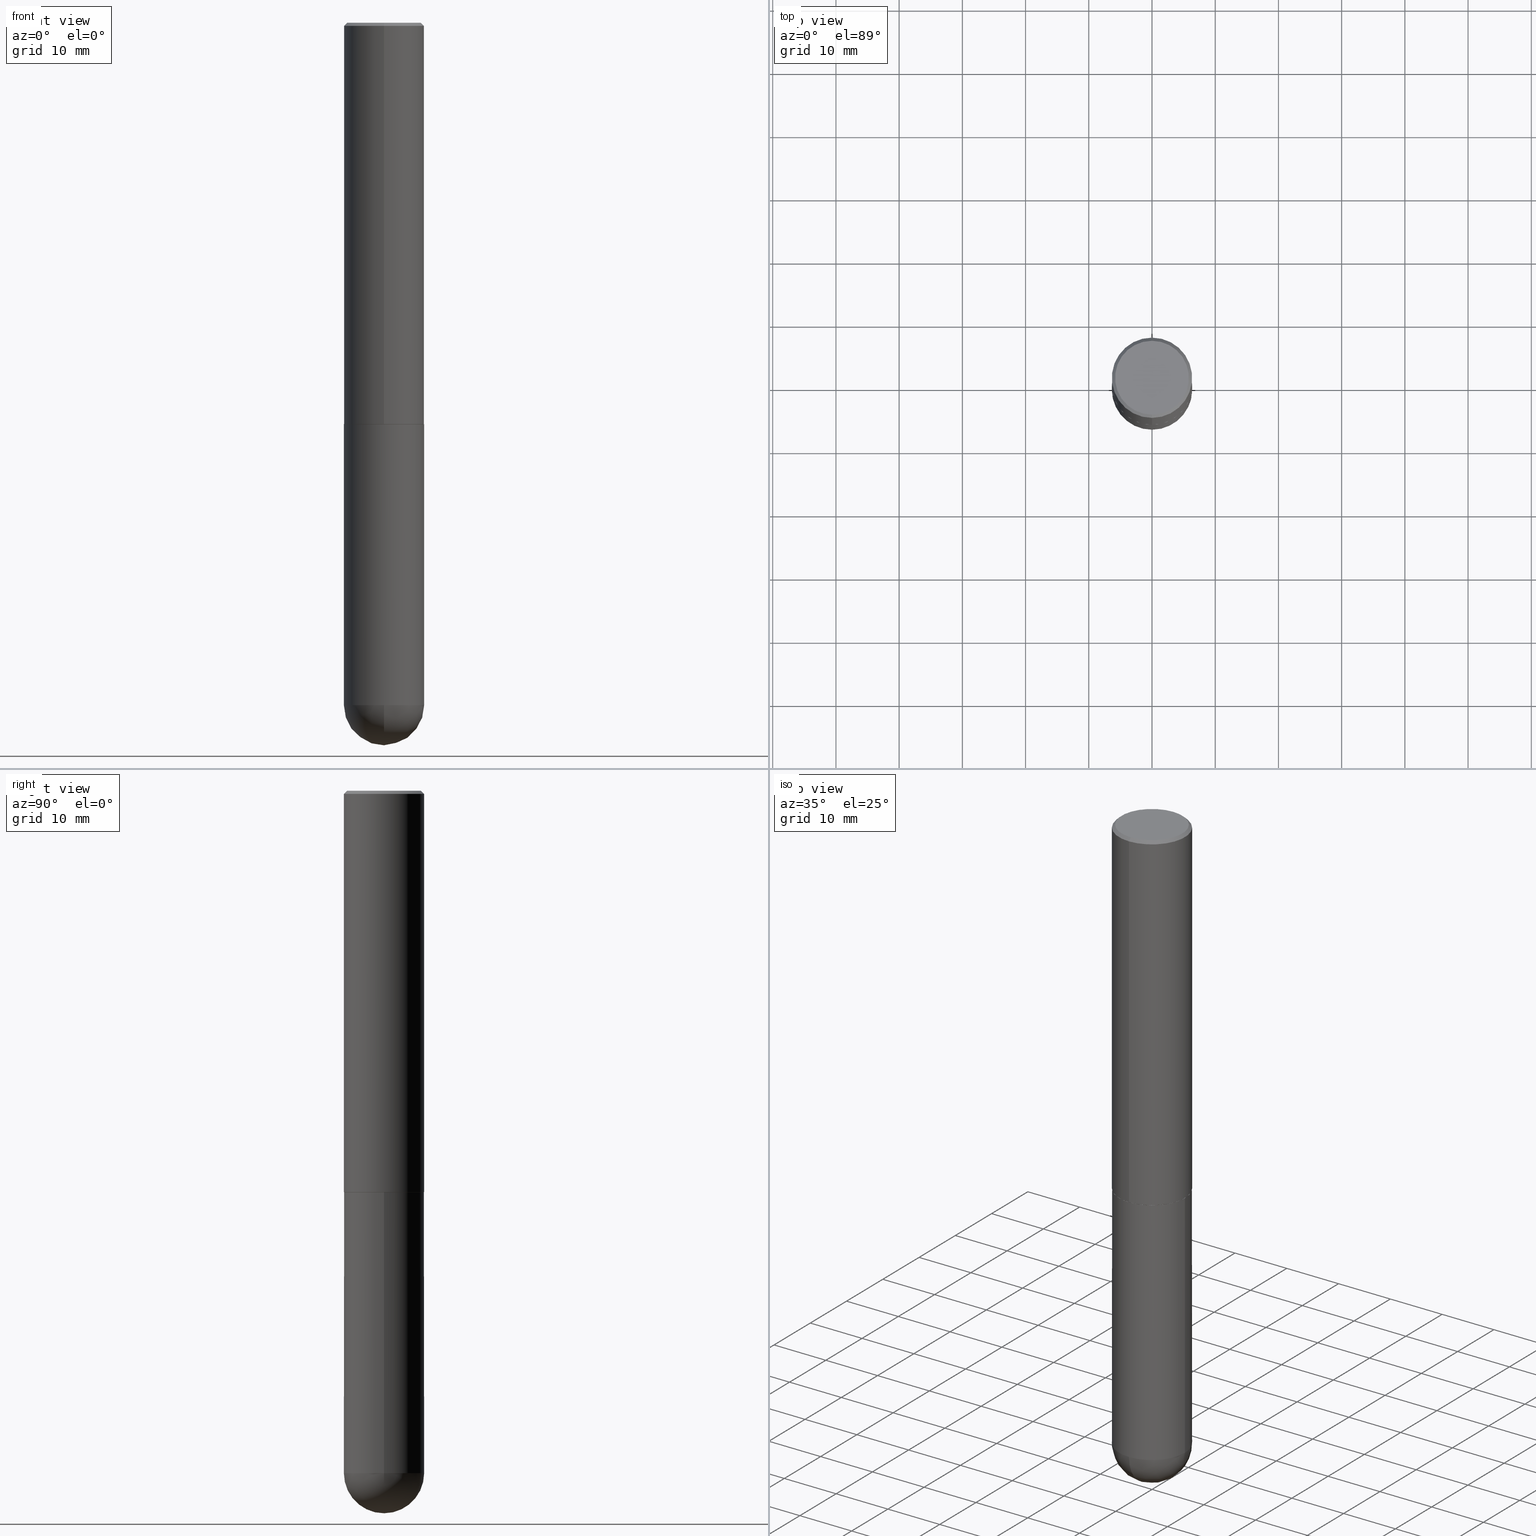
[diagram: canonical four-view strip — front | top / right | iso, engineering-drawing reading convention]
A machine part, canonical four-view strip (front | top / right | iso — engineering-drawing reading convention). The complete STEP part file that produces these views, byte-faithful:
ISO-10303-21;
HEADER;
FILE_DESCRIPTION (( 'STEP AP203' ),
    '1' );
FILE_NAME ('31786.STEP',
    '2024-02-21T16:54:42',
    ( '' ),
    ( '' ),
    'SwSTEP 2.0',
    'SolidWorks 2023',
    '' );
FILE_SCHEMA (( 'CONFIG_CONTROL_DESIGN' ));
ENDSEC;

DATA;
#1 = SPHERICAL_SURFACE ( 'NONE', #5, 0.2500000000000001110 ) ;
#2 = APPLICATION_CONTEXT ( 'configuration controlled 3d designs of mechanical parts and assemblies' ) ;
#3 = APPROVAL_STATUS ( 'not_yet_approved' ) ;
#4 = DIRECTION ( 'NONE',  ( -2.445468806185136597E-29, 3.491481338843145583E-15, 1.000000000000000000 ) ) ;
#5 = AXIS2_PLACEMENT_3D ( 'NONE', #143, #288, #322 ) ;
#6 = VERTEX_POINT ( 'NONE', #124 ) ;
#7 = CALENDAR_DATE ( 2024, 21, 2 ) ;
#8 = DIRECTION ( 'NONE',  ( 5.024295867789263036E-15, 0.7071067811867189912, 0.7071067811863760433 ) ) ;
#9 = DIRECTION ( 'NONE',  ( -1.000000000000000000, 6.982962677686265922E-15, -4.883557194083113462E-29 ) ) ;
#10 = DIRECTION ( 'NONE',  ( -2.445109736820922196E-29, 3.491995546609659985E-15, 1.000000000000000000 ) ) ;
#11 = CIRCLE ( 'NONE', #275, 0.2500000000000002776 ) ;
#12 = CARTESIAN_POINT ( 'NONE',  ( 4.890219473641857704E-31, -6.983991093219337770E-17, -0.02000000000000005593 ) ) ;
#13 = EDGE_CURVE ( 'NONE', #194, #108, #46, .T. ) ;
#14 = CYLINDRICAL_SURFACE ( 'NONE', #61, 0.2500000000000001110 ) ;
#15 = LINE ( 'NONE', #148, #128 ) ;
#16 = EDGE_CURVE ( 'NONE', #141, #412, #20, .T. ) ;
#17 = FACE_OUTER_BOUND ( 'NONE', #201, .T. ) ;
#18 = DIRECTION ( 'NONE',  ( 1.000000000000000000, -6.982962677686270655E-15, 0.000000000000000000 ) ) ;
#19 = CALENDAR_DATE ( 2024, 21, 2 ) ;
#20 = CIRCLE ( 'NONE', #136, 0.2500000000000000000 ) ;
#21 = AXIS2_PLACEMENT_3D ( 'NONE', #211, #367, #18 ) ;
#22 = EDGE_LOOP ( 'NONE', ( #26, #257, #230, #315 ) ) ;
#23 = APPROVAL_DATE_TIME ( #312, #245 ) ;
#24 = EDGE_LOOP ( 'NONE', ( #65, #126, #104, #343 ) ) ;
#25 = PERSON ( 'UNSPECIFIED', 'UNSPECIFIED', 'UNSPECIFIED', ('UNSPECIFIED'), ('UNSPECIFIED'), ('UNSPECIFIED') ) ;
#26 = ORIENTED_EDGE ( 'NONE', *, *, #35, .F. ) ;
#27 = ORIENTED_EDGE ( 'NONE', *, *, #272, .F. ) ;
#28 = DIRECTION ( 'NONE',  ( 1.000000000000000000, 0.000000000000000000, 0.000000000000000000 ) ) ;
#29 = CARTESIAN_POINT ( 'NONE',  ( 1.039324242628683054E-28, -1.483879569008337040E-14, -4.250000000000000000 ) ) ;
#30 = PRODUCT_DEFINITION_FORMATION_WITH_SPECIFIED_SOURCE ( 'ANY', '', #72, .NOT_KNOWN. ) ;
#31 = ORIENTED_EDGE ( 'NONE', *, *, #184, .F. ) ;
#32 = CARTESIAN_POINT ( 'NONE',  ( 1.006212264837294429E-28, -1.531297805822341912E-14, -4.250000000000000000 ) ) ;
#33 = ORIENTED_EDGE ( 'NONE', *, *, #362, .T. ) ;
#34 = SECURITY_CLASSIFICATION_LEVEL ( 'unclassified' ) ;
#35 = EDGE_CURVE ( 'NONE', #223, #226, #165, .T. ) ;
#36 = DIRECTION ( 'NONE',  ( -2.445468806185136597E-29, 3.491481338843145583E-15, 1.000000000000000000 ) ) ;
#37 = ADVANCED_FACE ( 'NONE', ( #356 ), #1, .T. ) ;
#38 = DIRECTION ( 'NONE',  ( -6.982962677686266711E-15, -1.000000000000000000, 3.491995546609659985E-15 ) ) ;
#39 = AXIS2_PLACEMENT_3D ( 'NONE', #137, #352, #38 ) ;
#40 = ORIENTED_EDGE ( 'NONE', *, *, #287, .T. ) ;
#41 = PERSON_AND_ORGANIZATION ( #25, #300 ) ;
#42 = CARTESIAN_POINT ( 'NONE',  ( 1.606081415867840278E-15, 0.2299999999999998712, -7.604147169260680974E-16 ) ) ;
#43 = ORIENTED_EDGE ( 'NONE', *, *, #304, .T. ) ;
#44 = CARTESIAN_POINT ( 'NONE',  ( 6.112774342052305909E-29, -8.729988866524149372E-15, -2.500000000000000000 ) ) ;
#45 = DIRECTION ( 'NONE',  ( -2.445109736820922196E-29, 3.491995546609659985E-15, 1.000000000000000000 ) ) ;
#46 = CIRCLE ( 'NONE', #84, 0.2500000000000000000 ) ;
#47 = CC_DESIGN_PERSON_AND_ORGANIZATION_ASSIGNMENT ( #411, #199, ( #30 ) ) ;
#48 = CC_DESIGN_APPROVAL ( #101, ( #121 ) ) ;
#49 = DIRECTION ( 'NONE',  ( 6.982962677686265922E-15, 1.000000000000000000, -3.500180241882337261E-15 ) ) ;
#50 = DESIGN_CONTEXT ( 'detailed design', #2, 'design' ) ;
#51 = CARTESIAN_POINT ( 'NONE',  ( -1.738757706743818935E-15, -0.2490000000000087421, -2.499999999999999112 ) ) ;
#52 = DIRECTION ( 'NONE',  ( -2.445468806185136597E-29, 3.491481338843145583E-15, 1.000000000000000000 ) ) ;
#53 = EDGE_CURVE ( 'NONE', #226, #93, #181, .T. ) ;
#54 = CIRCLE ( 'NONE', #282, 0.2500000000000001110 ) ;
#55 = CIRCLE ( 'NONE', #397, 0.2299999999999998712 ) ;
#56 = FACE_OUTER_BOUND ( 'NONE', #100, .T. ) ;
#57 = CARTESIAN_POINT ( 'NONE',  ( 1.745740669421669032E-15, 0.2499999999999849842, -4.250000000000001776 ) ) ;
#58 = APPROVAL ( #59, 'UNSPECIFIED' ) ;
#59 = APPROVAL_STATUS ( 'not_yet_approved' ) ;
#60 = ORIENTED_EDGE ( 'NONE', *, *, #308, .T. ) ;
#61 = AXIS2_PLACEMENT_3D ( 'NONE', #246, #152, #179 ) ;
#62 = PERSON_AND_ORGANIZATION ( #25, #300 ) ;
#63 = ORIENTED_EDGE ( 'NONE', *, *, #404, .F. ) ;
#64 = CARTESIAN_POINT ( 'NONE',  ( 4.890219473641857704E-31, -6.983991093219337770E-17, -0.02000000000000005593 ) ) ;
#65 = ORIENTED_EDGE ( 'NONE', *, *, #147, .T. ) ;
#66 = APPLICATION_PROTOCOL_DEFINITION ( 'international standard', 'config_control_design', 1994, #2 ) ;
#67 = DIRECTION ( 'NONE',  ( 1.000000000000000000, -6.982962677686266711E-15, 0.000000000000000000 ) ) ;
#68 = ORIENTED_EDGE ( 'NONE', *, *, #166, .T. ) ;
#69 = CALENDAR_DATE ( 2024, 21, 2 ) ;
#70 = AXIS2_PLACEMENT_3D ( 'NONE', #83, #215, #333 ) ;
#71 = CARTESIAN_POINT ( 'NONE',  ( 6.112774342052305909E-29, -8.729988866524149372E-15, -2.500000000000000000 ) ) ;
#72 = PRODUCT ( '31786', '31786', '', ( #340 ) ) ;
#73 = AXIS2_PLACEMENT_3D ( 'NONE', #301, #45, #178 ) ;
#74 = ORIENTED_EDGE ( 'NONE', *, *, #13, .F. ) ;
#75 = DIRECTION ( 'NONE',  ( -6.982962677686265922E-15, -1.000000000000000000, 3.491995546609659985E-15 ) ) ;
#76 = ADVANCED_FACE ( 'NONE', ( #206 ), #203, .T. ) ;
#77 = SPHERICAL_SURFACE ( 'NONE', #325, 0.2500000000000001110 ) ;
#78 = CARTESIAN_POINT ( 'NONE',  ( -1.745740669421507316E-15, -0.2500000000000089928, -2.498999999999999222 ) ) ;
#79 = AXIS2_PLACEMENT_3D ( 'NONE', #390, #109, #329 ) ;
#80 = DIRECTION ( 'NONE',  ( 1.000000000000000000, -6.982962677686265922E-15, 4.883557194083112340E-29 ) ) ;
#81 = CARTESIAN_POINT ( 'NONE',  ( 1.772804125721511886E-15, 0.2489999999999912561, -2.500000000000001332 ) ) ;
#82 = CC_DESIGN_PERSON_AND_ORGANIZATION_ASSIGNMENT ( #323, #135, ( #121 ) ) ;
#83 = CARTESIAN_POINT ( 'NONE',  ( 4.890219473641857704E-31, -6.983991093219337770E-17, -0.02000000000000005593 ) ) ;
#84 = AXIS2_PLACEMENT_3D ( 'NONE', #158, #130, #67 ) ;
#85 = CIRCLE ( 'NONE', #73, 0.2489999999999999991 ) ;
#86 = CARTESIAN_POINT ( 'NONE',  ( 1.006212264837294429E-28, -1.531297805822341912E-14, -4.250000000000000000 ) ) ;
#87 = CARTESIAN_POINT ( 'NONE',  ( 1.039324242628683054E-28, -1.483879569008337040E-14, -4.250000000000000000 ) ) ;
#88 = CARTESIAN_POINT ( 'NONE',  ( -1.745740669421567467E-15, -0.2500000000000001110, 8.729988866524153908E-16 ) ) ;
#89 = CIRCLE ( 'NONE', #79, 0.2299999999999998712 ) ;
#90 = AXIS2_PLACEMENT_3D ( 'NONE', #118, #278, #376 ) ;
#91 = COORDINATED_UNIVERSAL_TIME_OFFSET ( 5, 0, .BEHIND. ) ;
#92 = PERSON_AND_ORGANIZATION ( #25, #300 ) ;
#93 = VERTEX_POINT ( 'NONE', #78 ) ;
#94 = ADVANCED_FACE ( 'NONE', ( #327 ), #383, .F. ) ;
#95 = ORIENTED_EDGE ( 'NONE', *, *, #98, .T. ) ;
#96 = DIRECTION ( 'NONE',  ( 1.000000000000000000, -6.982962677686270655E-15, 0.000000000000000000 ) ) ;
#97 = ORIENTED_EDGE ( 'NONE', *, *, #287, .F. ) ;
#98 = EDGE_CURVE ( 'NONE', #6, #349, #89, .T. ) ;
#99 = LINE ( 'NONE', #222, #111 ) ;
#100 = EDGE_LOOP ( 'NONE', ( #97, #286, #372, #123 ) ) ;
#101 = APPROVAL ( #3, 'UNSPECIFIED' ) ;
#102 = DIRECTION ( 'NONE',  ( -2.445468806185136597E-29, 3.491481338843145583E-15, 1.000000000000000000 ) ) ;
#103 = CARTESIAN_POINT ( 'NONE',  ( 0.2500000000000000000, -1.047444401652943162E-14, -2.500000000000000000 ) ) ;
#104 = ORIENTED_EDGE ( 'NONE', *, *, #384, .F. ) ;
#105 = AXIS2_PLACEMENT_3D ( 'NONE', #258, #36, #236 ) ;
#106 = APPROVAL_DATE_TIME ( #295, #58 ) ;
#107 = DIRECTION ( 'NONE',  ( -2.445109736820922196E-29, 3.491995546609659985E-15, 1.000000000000000000 ) ) ;
#108 = VERTEX_POINT ( 'NONE', #103 ) ;
#109 = DIRECTION ( 'NONE',  ( -2.445109736820922196E-29, 3.491995546609659985E-15, 1.000000000000000000 ) ) ;
#110 = CIRCLE ( 'NONE', #189, 0.2500000000000000000 ) ;
#111 = VECTOR ( 'NONE', #408, 39.37007874015748143 ) ;
#112 = DIRECTION ( 'NONE',  ( -6.982962677686265922E-15, -1.000000000000000000, 3.500180241882337261E-15 ) ) ;
#113 = CARTESIAN_POINT ( 'NONE',  ( 1.745740669421566875E-15, 0.2499999999999999167, -0.02000000000000093023 ) ) ;
#114 = CARTESIAN_POINT ( 'NONE',  ( -0.2500000000000000000, -1.000739267919536563E-14, -2.500000000000000000 ) ) ;
#115 = AXIS2_PLACEMENT_3D ( 'NONE', #86, #216, #392 ) ;
#116 = CIRCLE ( 'NONE', #219, 0.2500000000000000000 ) ;
#117 = CARTESIAN_POINT ( 'NONE',  ( -0.2500000000000000000, -1.000739267919536879E-14, -4.250000000000000000 ) ) ;
#118 = CARTESIAN_POINT ( 'NONE',  ( 0.000000000000000000, 0.000000000000000000, 0.000000000000000000 ) ) ;
#119 = EDGE_CURVE ( 'NONE', #207, #223, #364, .T. ) ;
#120 = PERSON_AND_ORGANIZATION ( #25, #300 ) ;
#121 = SECURITY_CLASSIFICATION ( '', '', #34 ) ;
#122 = ADVANCED_FACE ( 'NONE', ( #298 ), #263, .F. ) ;
#123 = ORIENTED_EDGE ( 'NONE', *, *, #284, .F. ) ;
#124 = CARTESIAN_POINT ( 'NONE',  ( 1.675911042644703577E-15, 0.2299999999999998712, -7.176704581319149582E-16 ) ) ;
#125 = ORIENTED_EDGE ( 'NONE', *, *, #127, .F. ) ;
#126 = ORIENTED_EDGE ( 'NONE', *, *, #190, .T. ) ;
#127 = EDGE_CURVE ( 'NONE', #207, #93, #267, .T. ) ;
#128 = VECTOR ( 'NONE', #366, 39.37007874015748143 ) ;
#129 = DIRECTION ( 'NONE',  ( 0.000000000000000000, 0.000000000000000000, 1.000000000000000000 ) ) ;
#130 = DIRECTION ( 'NONE',  ( -2.445468806185136597E-29, 3.491481338843145583E-15, 1.000000000000000000 ) ) ;
#131 = EDGE_LOOP ( 'NONE', ( #95, #40 ) ) ;
#132 = ORIENTED_EDGE ( 'NONE', *, *, #184, .T. ) ;
#133 = CC_DESIGN_PERSON_AND_ORGANIZATION_ASSIGNMENT ( #120, #187, ( #256 ) ) ;
#134 = CARTESIAN_POINT ( 'NONE',  ( 6.110329232315485644E-29, -8.726496870977541321E-15, -2.499000000000000110 ) ) ;
#135 = PERSON_AND_ORGANIZATION_ROLE ( 'classification_officer' ) ;
#136 = AXIS2_PLACEMENT_3D ( 'NONE', #29, #4, #264 ) ;
#137 = CARTESIAN_POINT ( 'NONE',  ( 0.000000000000000000, 0.000000000000000000, 0.000000000000000000 ) ) ;
#138 = CALENDAR_DATE ( 2024, 21, 2 ) ;
#139 = DIRECTION ( 'NONE',  ( -6.982962677686265922E-15, -1.000000000000000000, 4.370956789862816416E-15 ) ) ;
#140 = CARTESIAN_POINT ( 'NONE',  ( -1.776356839400148307E-15, -0.2500000000000151545, -4.249999999999999112 ) ) ;
#141 = VERTEX_POINT ( 'NONE', #140 ) ;
#142 = CC_DESIGN_DATE_AND_TIME_ASSIGNMENT ( #153, #274, ( #256 ) ) ;
#143 = CARTESIAN_POINT ( 'NONE',  ( 1.006212264837294429E-28, -1.531297805822341912E-14, -4.250000000000000000 ) ) ;
#144 = ADVANCED_FACE ( 'NONE', ( #387 ), #354, .T. ) ;
#145 = CARTESIAN_POINT ( 'NONE',  ( -2.090288067415548547E-45, 2.985255227046278576E-31, 8.548851758830648794E-17 ) ) ;
#146 = LINE ( 'NONE', #88, #197 ) ;
#147 = EDGE_CURVE ( 'NONE', #93, #226, #11, .T. ) ;
#148 = CARTESIAN_POINT ( 'NONE',  ( -0.2500000000000000000, 1.776356839400250465E-15, -1.229733772563726445E-29 ) ) ;
#149 = AXIS2_PLACEMENT_3D ( 'NONE', #380, #374, #339 ) ;
#150 = CARTESIAN_POINT ( 'NONE',  ( 1.745740669421627617E-15, 0.2499999999999912570, -2.500000000000001332 ) ) ;
#151 = ADVANCED_FACE ( 'NONE', ( #348 ), #318, .T. ) ;
#152 = DIRECTION ( 'NONE',  ( -2.445109736820922196E-29, 3.491995546609659985E-15, 1.000000000000000000 ) ) ;
#153 = DATE_AND_TIME ( #19, #214 ) ;
#154 = ORIENTED_EDGE ( 'NONE', *, *, #166, .F. ) ;
#155 = LENGTH_MEASURE_WITH_UNIT ( LENGTH_MEASURE( 0.02539999999999999897 ), #185 );
#156 = ORIENTED_EDGE ( 'NONE', *, *, #304, .F. ) ;
#157 = APPROVAL_ROLE ( '' ) ;
#158 = CARTESIAN_POINT ( 'NONE',  ( 6.113672015462842613E-29, -8.728703347107864943E-15, -2.500000000000000000 ) ) ;
#159 = ADVANCED_FACE ( 'NONE', ( #359 ), #77, .T. ) ;
#160 = ORIENTED_EDGE ( 'NONE', *, *, #172, .T. ) ;
#161 = VECTOR ( 'NONE', #213, 39.37007874015748143 ) ;
#162 = LOCAL_TIME ( 11, 54, 42.00000000000000000, #316 ) ;
#163 = ORIENTED_EDGE ( 'NONE', *, *, #227, .T. ) ;
#164 = APPROVAL_ROLE ( '' ) ;
#165 = LINE ( 'NONE', #235, #401 ) ;
#166 = EDGE_CURVE ( 'NONE', #196, #405, #54, .T. ) ;
#167 = PERSON_AND_ORGANIZATION_ROLE ( 'creator' ) ;
#168 = CARTESIAN_POINT ( 'NONE',  ( 6.110329232315485644E-29, -8.726496870977541321E-15, -2.499000000000000110 ) ) ;
#169 = DIRECTION ( 'NONE',  ( -6.982962677686265133E-15, -1.000000000000000000, 4.388510833195603583E-15 ) ) ;
#170 = COORDINATED_UNIVERSAL_TIME_OFFSET ( 5, 0, .BEHIND. ) ;
#171 = CARTESIAN_POINT ( 'NONE',  ( -1.738757706743818935E-15, -0.2490000000000087421, -2.499999999999999112 ) ) ;
#172 = EDGE_CURVE ( 'NONE', #279, #276, #110, .T. ) ;
#173 = DIRECTION ( 'NONE',  ( -2.445109736820922196E-29, 3.491995546609659985E-15, 1.000000000000000000 ) ) ;
#174 = ORIENTED_EDGE ( 'NONE', *, *, #98, .F. ) ;
#175 = DIRECTION ( 'NONE',  ( 4.937700262164545676E-15, 0.7071067811865447972, -0.7071067811865502373 ) ) ;
#176 = AXIS2_PLACEMENT_3D ( 'NONE', #191, #102, #96 ) ;
#177 = ADVANCED_FACE ( 'NONE', ( #361 ), #331, .T. ) ;
#178 = DIRECTION ( 'NONE',  ( -6.982962677686265133E-15, -1.000000000000000000, 4.388510833195603583E-15 ) ) ;
#179 = DIRECTION ( 'NONE',  ( -6.982962677686266711E-15, -1.000000000000000000, 3.491995546609659985E-15 ) ) ;
#180 = DIRECTION ( 'NONE',  ( 1.000000000000000000, -6.982962677686270655E-15, 0.000000000000000000 ) ) ;
#181 = CIRCLE ( 'NONE', #247, 0.2500000000000002776 ) ;
#182 = AXIS2_PLACEMENT_3D ( 'NONE', #369, #129, #28 ) ;
#183 = CARTESIAN_POINT ( 'NONE',  ( -1.715124499442882299E-15, -0.2500000000000000555, -0.01999999999999918163 ) ) ;
#184 = EDGE_CURVE ( 'NONE', #196, #141, #292, .T. ) ;
#185 =( LENGTH_UNIT ( ) NAMED_UNIT ( * ) SI_UNIT ( $, .METRE. ) );
#186 = ADVANCED_FACE ( 'NONE', ( #56 ), #336, .T. ) ;
#187 = PERSON_AND_ORGANIZATION_ROLE ( 'creator' ) ;
#188 = ORIENTED_EDGE ( 'NONE', *, *, #119, .F. ) ;
#189 = AXIS2_PLACEMENT_3D ( 'NONE', #234, #294, #112 ) ;
#190 = EDGE_CURVE ( 'NONE', #226, #279, #337, .T. ) ;
#191 = CARTESIAN_POINT ( 'NONE',  ( 1.039324242628683054E-28, -1.483879569008337040E-14, -4.250000000000000000 ) ) ;
#192 = ORIENTED_EDGE ( 'NONE', *, *, #240, .F. ) ;
#193 =( NAMED_UNIT ( * ) SI_UNIT ( $, .STERADIAN. ) SOLID_ANGLE_UNIT ( ) );
#194 = VERTEX_POINT ( 'NONE', #114 ) ;
#195 = APPROVAL_ROLE ( '' ) ;
#196 = VERTEX_POINT ( 'NONE', #332 ) ;
#197 = VECTOR ( 'NONE', #307, 39.37007874015748143 ) ;
#198 = APPROVAL_PERSON_ORGANIZATION ( #62, #245, #195 ) ;
#199 = PERSON_AND_ORGANIZATION_ROLE ( 'design_supplier' ) ;
#200 = CARTESIAN_POINT ( 'NONE',  ( 1.006212264837294429E-28, -1.531297805822341912E-14, -4.250000000000000000 ) ) ;
#201 = EDGE_LOOP ( 'NONE', ( #156, #60, #345, #379, #74 ) ) ;
#202 = DIRECTION ( 'NONE',  ( -2.445109736820922196E-29, 3.491995546609659985E-15, 1.000000000000000000 ) ) ;
#203 = CYLINDRICAL_SURFACE ( 'NONE', #39, 0.2500000000000001110 ) ;
#204 = ORIENTED_EDGE ( 'NONE', *, *, #373, .F. ) ;
#205 = CONICAL_SURFACE ( 'NONE', #342, 0.2500000000000000000, 0.7853981633974479459 ) ;
#206 = FACE_OUTER_BOUND ( 'NONE', #209, .T. ) ;
#207 = VERTEX_POINT ( 'NONE', #51 ) ;
#208 = DIRECTION ( 'NONE',  ( 2.445109736820921635E-29, -3.491995546609659985E-15, -1.000000000000000000 ) ) ;
#209 = EDGE_LOOP ( 'NONE', ( #381, #328, #163, #375 ) ) ;
#210 = DIMENSIONAL_EXPONENTS ( 1.000000000000000000, 0.000000000000000000, 0.000000000000000000, 0.000000000000000000, 0.000000000000000000, 0.000000000000000000, 0.000000000000000000 ) ;
#211 = CARTESIAN_POINT ( 'NONE',  ( 1.039324242628683054E-28, -1.483879569008337040E-14, -4.250000000000000000 ) ) ;
#212 = EDGE_CURVE ( 'NONE', #349, #276, #268, .T. ) ;
#213 = DIRECTION ( 'NONE',  ( -2.445109736820922196E-29, 3.491995546609659985E-15, 1.000000000000000000 ) ) ;
#214 = LOCAL_TIME ( 11, 54, 42.00000000000000000, #91 ) ;
#215 = DIRECTION ( 'NONE',  ( 2.445109736820922196E-29, -3.491995546609659985E-15, -1.000000000000000000 ) ) ;
#216 = DIRECTION ( 'NONE',  ( -1.000000000000000000, 7.105427357601001070E-15, -4.926315508542082329E-29 ) ) ;
#217 = CARTESIAN_POINT ( 'NONE',  ( 6.112774342052305909E-29, -8.729988866524149372E-15, -2.500000000000000000 ) ) ;
#218 = AXIS2_PLACEMENT_3D ( 'NONE', #71, #202, #169 ) ;
#219 = AXIS2_PLACEMENT_3D ( 'NONE', #87, #52, #180 ) ;
#220 = CALENDAR_DATE ( 2024, 21, 2 ) ;
#221 = ORIENTED_EDGE ( 'NONE', *, *, #35, .T. ) ;
#222 = CARTESIAN_POINT ( 'NONE',  ( 0.2500000000000000000, -1.745740669421566678E-15, 1.219044193948983948E-29 ) ) ;
#223 = VERTEX_POINT ( 'NONE', #81 ) ;
#224 = APPROVAL_PERSON_ORGANIZATION ( #92, #58, #157 ) ;
#225 =( CONVERSION_BASED_UNIT ( 'INCH', #155 ) LENGTH_UNIT ( ) NAMED_UNIT ( #210 ) );
#226 = VERTEX_POINT ( 'NONE', #306 ) ;
#227 = EDGE_CURVE ( 'NONE', #93, #276, #146, .T. ) ;
#228 = EDGE_LOOP ( 'NONE', ( #407, #221, #281, #125 ) ) ;
#229 = DIRECTION ( 'NONE',  ( -4.937700262165728178E-15, -0.7071067811867141062, 0.7071067811863809283 ) ) ;
#230 = ORIENTED_EDGE ( 'NONE', *, *, #127, .T. ) ;
#231 = AXIS2_PLACEMENT_3D ( 'NONE', #42, #208, #324 ) ;
#232 = DIRECTION ( 'NONE',  ( 6.982962677686266711E-15, 1.000000000000000000, 0.000000000000000000 ) ) ;
#233 = PERSON_AND_ORGANIZATION ( #25, #300 ) ;
#234 = CARTESIAN_POINT ( 'NONE',  ( 4.890219473641857704E-31, -6.983991093219337770E-17, -0.02000000000000005593 ) ) ;
#235 = CARTESIAN_POINT ( 'NONE',  ( 1.769251412042710396E-15, 0.2489999999999912561, -2.500000000000001332 ) ) ;
#236 = DIRECTION ( 'NONE',  ( 1.000000000000000000, -6.982962677686266711E-15, 4.876176775795935793E-29 ) ) ;
#237 = ORIENTED_EDGE ( 'NONE', *, *, #16, .F. ) ;
#238 = DIRECTION ( 'NONE',  ( -4.851104656540961908E-15, -0.7071067811865496822, -0.7071067811865453523 ) ) ;
#239 = DIRECTION ( 'NONE',  ( -1.000000000000000000, 6.982962677686265922E-15, -4.876176775795935793E-29 ) ) ;
#240 = EDGE_CURVE ( 'NONE', #405, #255, #243, .T. ) ;
#241 = VECTOR ( 'NONE', #229, 39.37007874015748143 ) ;
#242 = CARTESIAN_POINT ( 'NONE',  ( -1.715124499442882299E-15, -0.2500000000000000555, -0.01999999999999918163 ) ) ;
#243 = CIRCLE ( 'NONE', #21, 0.2500000000000000000 ) ;
#244 = FACE_OUTER_BOUND ( 'NONE', #403, .T. ) ;
#245 = APPROVAL ( #248, 'UNSPECIFIED' ) ;
#246 = CARTESIAN_POINT ( 'NONE',  ( 0.000000000000000000, 0.000000000000000000, 0.000000000000000000 ) ) ;
#247 = AXIS2_PLACEMENT_3D ( 'NONE', #134, #107, #139 ) ;
#248 = APPROVAL_STATUS ( 'not_yet_approved' ) ;
#249 = ORIENTED_EDGE ( 'NONE', *, *, #240, .T. ) ;
#250 = ADVANCED_FACE ( 'NONE', ( #335 ), #205, .T. ) ;
#251 = ORIENTED_EDGE ( 'NONE', *, *, #212, .F. ) ;
#252 = CLOSED_SHELL ( 'NONE', ( #151, #297, #186, #250, #76, #177, #94, #122 ) ) ;
#253 = CC_DESIGN_APPROVAL ( #58, ( #30 ) ) ;
#254 = CARTESIAN_POINT ( 'NONE',  ( -1.646519519465166573E-15, -0.2299999999999998712, 8.886474933085278108E-16 ) ) ;
#255 = VERTEX_POINT ( 'NONE', #117 ) ;
#256 = PRODUCT_DEFINITION ( 'UNKNOWN', '', #30, #50 ) ;
#257 = ORIENTED_EDGE ( 'NONE', *, *, #272, .T. ) ;
#258 = CARTESIAN_POINT ( 'NONE',  ( 0.000000000000000000, 0.000000000000000000, 0.000000000000000000 ) ) ;
#259 = ADVANCED_FACE ( 'NONE', ( #244 ), #393, .F. ) ;
#260 =( GEOMETRIC_REPRESENTATION_CONTEXT ( 3 ) GLOBAL_UNCERTAINTY_ASSIGNED_CONTEXT ( ( #334 ) ) GLOBAL_UNIT_ASSIGNED_CONTEXT ( ( #225, #344, #193 ) ) REPRESENTATION_CONTEXT ( 'NONE', 'WORKASPACE' ) );
#261 = APPROVAL_PERSON_ORGANIZATION ( #41, #101, #164 ) ;
#262 = SHAPE_DEFINITION_REPRESENTATION ( #283, #265 ) ;
#263 = PLANE ( 'NONE',  #231 ) ;
#264 = DIRECTION ( 'NONE',  ( 1.000000000000000000, -6.982962677686270655E-15, 0.000000000000000000 ) ) ;
#265 = ADVANCED_BREP_SHAPE_REPRESENTATION ( '31786', ( #299, #310, #182 ), #260 ) ;
#266 = CARTESIAN_POINT ( 'NONE',  ( 6.112774342052305909E-29, -8.729988866524149372E-15, -2.500000000000000000 ) ) ;
#267 = LINE ( 'NONE', #171, #241 ) ;
#268 = LINE ( 'NONE', #183, #391 ) ;
#269 = DIRECTION ( 'NONE',  ( 2.445109736820922196E-29, -3.491995546609659985E-15, -1.000000000000000000 ) ) ;
#270 = AXIS2_PLACEMENT_3D ( 'NONE', #266, #388, #75 ) ;
#271 = DIRECTION ( 'NONE',  ( 2.438088387897960049E-29, -3.491481338843145188E-15, -1.000000000000000000 ) ) ;
#272 = EDGE_CURVE ( 'NONE', #223, #207, #85, .T. ) ;
#273 = FACE_OUTER_BOUND ( 'NONE', #24, .T. ) ;
#274 = DATE_TIME_ROLE ( 'creation_date' ) ;
#275 = AXIS2_PLACEMENT_3D ( 'NONE', #168, #10, #291 ) ;
#276 = VERTEX_POINT ( 'NONE', #242 ) ;
#277 = DIRECTION ( 'NONE',  ( -6.982962677686265922E-15, -1.000000000000000000, 3.500180241882337261E-15 ) ) ;
#278 = DIRECTION ( 'NONE',  ( -2.445468806185136597E-29, 3.491481338843145583E-15, 1.000000000000000000 ) ) ;
#279 = VERTEX_POINT ( 'NONE', #303 ) ;
#280 = APPLICATION_PROTOCOL_DEFINITION ( 'international standard', 'config_control_design', 1994, #395 ) ;
#281 = ORIENTED_EDGE ( 'NONE', *, *, #147, .F. ) ;
#282 = AXIS2_PLACEMENT_3D ( 'NONE', #32, #80, #232 ) ;
#283 = PRODUCT_DEFINITION_SHAPE ( 'NONE', 'NONE',  #256 ) ;
#284 = EDGE_CURVE ( 'NONE', #6, #279, #365, .T. ) ;
#285 = CIRCLE ( 'NONE', #149, 0.2500000000000000000 ) ;
#286 = ORIENTED_EDGE ( 'NONE', *, *, #212, .T. ) ;
#287 = EDGE_CURVE ( 'NONE', #349, #6, #55, .T. ) ;
#288 = DIRECTION ( 'NONE',  ( -1.000000000000000000, 6.982962677686265922E-15, -4.883557194083113462E-29 ) ) ;
#289 = COORDINATED_UNIVERSAL_TIME_OFFSET ( 5, 0, .BEHIND. ) ;
#290 = CC_DESIGN_PERSON_AND_ORGANIZATION_ASSIGNMENT ( #233, #167, ( #30 ) ) ;
#291 = DIRECTION ( 'NONE',  ( -6.982962677686265922E-15, -1.000000000000000000, 4.370956789862816416E-15 ) ) ;
#292 = CIRCLE ( 'NONE', #115, 0.2500000000000001110 ) ;
#293 = CC_DESIGN_APPROVAL ( #245, ( #256 ) ) ;
#294 = DIRECTION ( 'NONE',  ( -2.445109736820922196E-29, 3.491995546609659985E-15, 1.000000000000000000 ) ) ;
#295 = DATE_AND_TIME ( #138, #378 ) ;
#296 = DIRECTION ( 'NONE',  ( -6.982962677686265133E-15, -1.000000000000000000, 4.388510833195603583E-15 ) ) ;
#297 = ADVANCED_FACE ( 'NONE', ( #273 ), #14, .T. ) ;
#298 = FACE_OUTER_BOUND ( 'NONE', #131, .T. ) ;
#299 = MANIFOLD_SOLID_BREP ( 'Body-Move/Copy2[1]', #377 ) ;
#300 = ORGANIZATION ( 'UNSPECIFIED', 'UNSPECIFIED', '' ) ;
#301 = CARTESIAN_POINT ( 'NONE',  ( 6.112774342052305909E-29, -8.729988866524149372E-15, -2.500000000000000000 ) ) ;
#302 = DIRECTION ( 'NONE',  ( -6.982962677686265922E-15, -1.000000000000000000, 3.491995546609659985E-15 ) ) ;
#303 = CARTESIAN_POINT ( 'NONE',  ( 1.745740669421566875E-15, 0.2499999999999999167, -0.02000000000000093023 ) ) ;
#304 = EDGE_CURVE ( 'NONE', #255, #194, #15, .T. ) ;
#305 = AXIS2_PLACEMENT_3D ( 'NONE', #44, #173, #296 ) ;
#306 = CARTESIAN_POINT ( 'NONE',  ( 1.776356839400282414E-15, 0.2499999999999915345, -2.499000000000001442 ) ) ;
#307 = DIRECTION ( 'NONE',  ( -2.445109736820922196E-29, 3.491995546609659985E-15, 1.000000000000000000 ) ) ;
#308 = EDGE_CURVE ( 'NONE', #255, #141, #116, .T. ) ;
#309 = COORDINATED_UNIVERSAL_TIME_OFFSET ( 5, 0, .BEHIND. ) ;
#310 = MANIFOLD_SOLID_BREP ( 'Body-Move/Copy2[2]', #252 ) ;
#311 = ORIENTED_EDGE ( 'NONE', *, *, #373, .T. ) ;
#312 = DATE_AND_TIME ( #220, #162 ) ;
#313 = EDGE_LOOP ( 'NONE', ( #154, #132, #341, #192 ) ) ;
#314 = ADVANCED_FACE ( 'NONE', ( #17 ), #399, .T. ) ;
#315 = ORIENTED_EDGE ( 'NONE', *, *, #53, .F. ) ;
#316 = COORDINATED_UNIVERSAL_TIME_OFFSET ( 5, 0, .BEHIND. ) ;
#317 = ORIENTED_EDGE ( 'NONE', *, *, #284, .T. ) ;
#318 = CONICAL_SURFACE ( 'NONE', #218, 0.2489999999999999991, 0.7853981633976873100 ) ;
#319 = DIRECTION ( 'NONE',  ( 6.982962677686265922E-15, 1.000000000000000000, -4.370956789862818783E-15 ) ) ;
#320 = EDGE_LOOP ( 'NONE', ( #188, #27 ) ) ;
#321 = PRODUCT_RELATED_PRODUCT_CATEGORY ( 'detail', '', ( #72 ) ) ;
#322 = DIRECTION ( 'NONE',  ( 6.982962677686265922E-15, 1.000000000000000000, -4.370956789862818783E-15 ) ) ;
#323 = PERSON_AND_ORGANIZATION ( #25, #300 ) ;
#324 = DIRECTION ( 'NONE',  ( 6.982962677686265922E-15, 1.000000000000000000, -3.491995546609659985E-15 ) ) ;
#325 = AXIS2_PLACEMENT_3D ( 'NONE', #200, #9, #319 ) ;
#326 = AXIS2_PLACEMENT_3D ( 'NONE', #150, #271, #239 ) ;
#327 = FACE_OUTER_BOUND ( 'NONE', #320, .T. ) ;
#328 = ORIENTED_EDGE ( 'NONE', *, *, #53, .T. ) ;
#329 = DIRECTION ( 'NONE',  ( -6.982962677686265922E-15, -1.000000000000000000, 3.491995546609659985E-15 ) ) ;
#330 = DIRECTION ( 'NONE',  ( -2.445109736820922196E-29, 3.491995546609659985E-15, 1.000000000000000000 ) ) ;
#331 = CONICAL_SURFACE ( 'NONE', #368, 0.2489999999999999991, 0.7853981633976873100 ) ;
#332 = CARTESIAN_POINT ( 'NONE',  ( 1.068417942853397052E-28, -1.617054030794486372E-14, -4.500000000000000888 ) ) ;
#333 = DIRECTION ( 'NONE',  ( 6.982962677686265922E-15, 1.000000000000000000, -3.500180241882337261E-15 ) ) ;
#334 = UNCERTAINTY_MEASURE_WITH_UNIT (LENGTH_MEASURE( 1.000000000000000082E-05 ), #225, 'distance_accuracy_value', 'NONE');
#335 = FACE_OUTER_BOUND ( 'NONE', #357, .T. ) ;
#336 = CONICAL_SURFACE ( 'NONE', #70, 0.2500000000000000000, 0.7853981633974479459 ) ;
#337 = LINE ( 'NONE', #398, #161 ) ;
#338 = VECTOR ( 'NONE', #175, 39.37007874015748143 ) ;
#339 = DIRECTION ( 'NONE',  ( 1.000000000000000000, -6.982962677686266711E-15, 0.000000000000000000 ) ) ;
#340 = MECHANICAL_CONTEXT ( 'NONE', #395, 'mechanical' ) ;
#341 = ORIENTED_EDGE ( 'NONE', *, *, #308, .F. ) ;
#342 = AXIS2_PLACEMENT_3D ( 'NONE', #12, #269, #49 ) ;
#343 = ORIENTED_EDGE ( 'NONE', *, *, #227, .F. ) ;
#344 =( NAMED_UNIT ( * ) PLANE_ANGLE_UNIT ( ) SI_UNIT ( $, .RADIAN. ) );
#345 = ORIENTED_EDGE ( 'NONE', *, *, #16, .T. ) ;
#346 = PERSON_AND_ORGANIZATION_ROLE ( 'design_owner' ) ;
#347 = DATE_AND_TIME ( #69, #350 ) ;
#348 = FACE_OUTER_BOUND ( 'NONE', #228, .T. ) ;
#349 = VERTEX_POINT ( 'NONE', #254 ) ;
#350 = LOCAL_TIME ( 11, 54, 42.00000000000000000, #289 ) ;
#351 = APPROVAL_DATE_TIME ( #355, #101 ) ;
#352 = DIRECTION ( 'NONE',  ( -2.445109736820922196E-29, 3.491995546609659985E-15, 1.000000000000000000 ) ) ;
#353 = ORIENTED_EDGE ( 'NONE', *, *, #13, .T. ) ;
#354 = CYLINDRICAL_SURFACE ( 'NONE', #105, 0.2500000000000000000 ) ;
#355 = DATE_AND_TIME ( #7, #402 ) ;
#356 = FACE_OUTER_BOUND ( 'NONE', #410, .T. ) ;
#357 = EDGE_LOOP ( 'NONE', ( #251, #174, #317, #160 ) ) ;
#358 = CIRCLE ( 'NONE', #176, 0.2500000000000000000 ) ;
#359 = FACE_OUTER_BOUND ( 'NONE', #313, .T. ) ;
#360 = EDGE_LOOP ( 'NONE', ( #249, #43, #382, #63, #311 ) ) ;
#361 = FACE_OUTER_BOUND ( 'NONE', #22, .T. ) ;
#362 = EDGE_CURVE ( 'NONE', #108, #194, #285, .T. ) ;
#363 = DIRECTION ( 'NONE',  ( -2.445109736820922196E-29, 3.491995546609659985E-15, 1.000000000000000000 ) ) ;
#364 = CIRCLE ( 'NONE', #305, 0.2489999999999999991 ) ;
#365 = LINE ( 'NONE', #113, #338 ) ;
#366 = DIRECTION ( 'NONE',  ( -2.445468806185136877E-29, 3.491481338843145188E-15, 1.000000000000000000 ) ) ;
#367 = DIRECTION ( 'NONE',  ( -2.445468806185136597E-29, 3.491481338843145583E-15, 1.000000000000000000 ) ) ;
#368 = AXIS2_PLACEMENT_3D ( 'NONE', #217, #330, #396 ) ;
#369 = CARTESIAN_POINT ( 'NONE',  ( 0.000000000000000000, 0.000000000000000000, 0.000000000000000000 ) ) ;
#370 = AXIS2_PLACEMENT_3D ( 'NONE', #64, #406, #277 ) ;
#371 = CARTESIAN_POINT ( 'NONE',  ( 0.2500000000000000000, -1.352949018801718751E-14, -4.250000000000000000 ) ) ;
#372 = ORIENTED_EDGE ( 'NONE', *, *, #384, .T. ) ;
#373 = EDGE_CURVE ( 'NONE', #412, #405, #358, .T. ) ;
#374 = DIRECTION ( 'NONE',  ( -2.445468806185136597E-29, 3.491481338843145583E-15, 1.000000000000000000 ) ) ;
#375 = ORIENTED_EDGE ( 'NONE', *, *, #172, .F. ) ;
#376 = DIRECTION ( 'NONE',  ( 1.000000000000000000, -6.982962677686266711E-15, 4.876176775795935793E-29 ) ) ;
#377 = CLOSED_SHELL ( 'NONE', ( #144, #159, #37, #259, #314 ) ) ;
#378 = LOCAL_TIME ( 11, 54, 42.00000000000000000, #309 ) ;
#379 = ORIENTED_EDGE ( 'NONE', *, *, #404, .T. ) ;
#380 = CARTESIAN_POINT ( 'NONE',  ( 6.113672015462842613E-29, -8.728703347107864943E-15, -2.500000000000000000 ) ) ;
#381 = ORIENTED_EDGE ( 'NONE', *, *, #190, .F. ) ;
#382 = ORIENTED_EDGE ( 'NONE', *, *, #362, .F. ) ;
#383 = PLANE ( 'NONE',  #270 ) ;
#384 = EDGE_CURVE ( 'NONE', #276, #279, #385, .T. ) ;
#385 = CIRCLE ( 'NONE', #370, 0.2500000000000000000 ) ;
#386 = DATE_TIME_ROLE ( 'classification_date' ) ;
#387 = FACE_OUTER_BOUND ( 'NONE', #360, .T. ) ;
#388 = DIRECTION ( 'NONE',  ( -2.445109736820921635E-29, 3.491995546609659985E-15, 1.000000000000000000 ) ) ;
#389 = CC_DESIGN_PERSON_AND_ORGANIZATION_ASSIGNMENT ( #400, #346, ( #72 ) ) ;
#390 = CARTESIAN_POINT ( 'NONE',  ( -2.090288067415548547E-45, 2.985255227046278576E-31, 8.548851758830648794E-17 ) ) ;
#391 = VECTOR ( 'NONE', #238, 39.37007874015748143 ) ;
#392 = DIRECTION ( 'NONE',  ( -7.105427357601001859E-15, -1.000000000000000000, 0.000000000000000000 ) ) ;
#393 = PLANE ( 'NONE',  #326 ) ;
#394 = CC_DESIGN_DATE_AND_TIME_ASSIGNMENT ( #347, #386, ( #121 ) ) ;
#395 = APPLICATION_CONTEXT ( 'configuration controlled 3d designs of mechanical parts and assemblies' ) ;
#396 = DIRECTION ( 'NONE',  ( -6.982962677686265133E-15, -1.000000000000000000, 4.388510833195603583E-15 ) ) ;
#397 = AXIS2_PLACEMENT_3D ( 'NONE', #145, #363, #302 ) ;
#398 = CARTESIAN_POINT ( 'NONE',  ( 1.776356839400251254E-15, 0.2500000000000001110, -8.729988866524153908E-16 ) ) ;
#399 = CYLINDRICAL_SURFACE ( 'NONE', #90, 0.2500000000000000000 ) ;
#400 = PERSON_AND_ORGANIZATION ( #25, #300 ) ;
#401 = VECTOR ( 'NONE', #8, 39.37007874015748143 ) ;
#402 = LOCAL_TIME ( 11, 54, 42.00000000000000000, #170 ) ;
#403 = EDGE_LOOP ( 'NONE', ( #33, #353 ) ) ;
#404 = EDGE_CURVE ( 'NONE', #412, #108, #99, .T. ) ;
#405 = VERTEX_POINT ( 'NONE', #57 ) ;
#406 = DIRECTION ( 'NONE',  ( -2.445109736820922196E-29, 3.491995546609659985E-15, 1.000000000000000000 ) ) ;
#407 = ORIENTED_EDGE ( 'NONE', *, *, #119, .T. ) ;
#408 = DIRECTION ( 'NONE',  ( -2.445468806185136877E-29, 3.491481338843145188E-15, 1.000000000000000000 ) ) ;
#409 = CC_DESIGN_SECURITY_CLASSIFICATION ( #121, ( #30 ) ) ;
#410 = EDGE_LOOP ( 'NONE', ( #31, #68, #204, #237 ) ) ;
#411 = PERSON_AND_ORGANIZATION ( #25, #300 ) ;
#412 = VERTEX_POINT ( 'NONE', #371 ) ;
ENDSEC;
END-ISO-10303-21;
